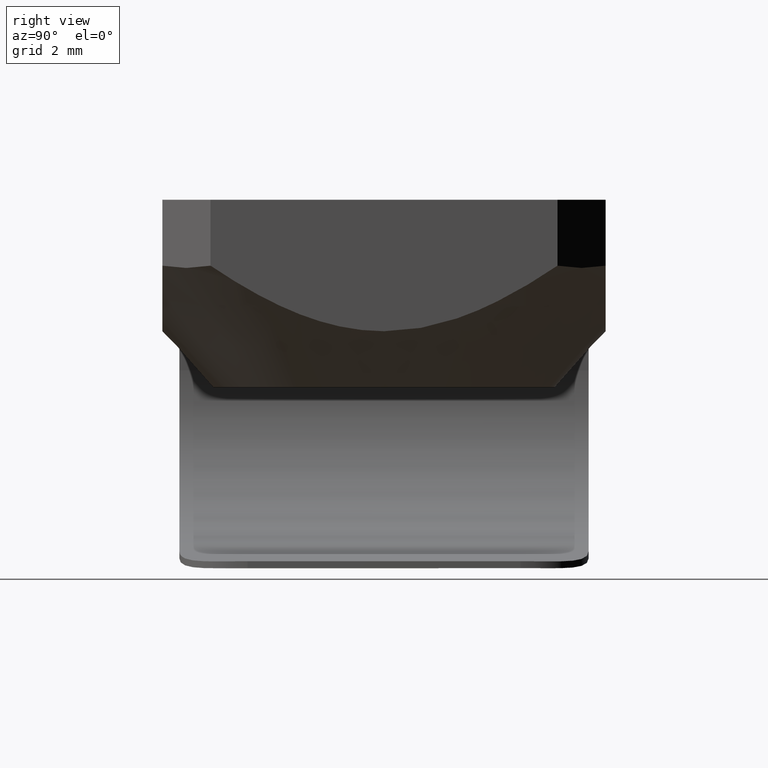
[diagram: clean part render]
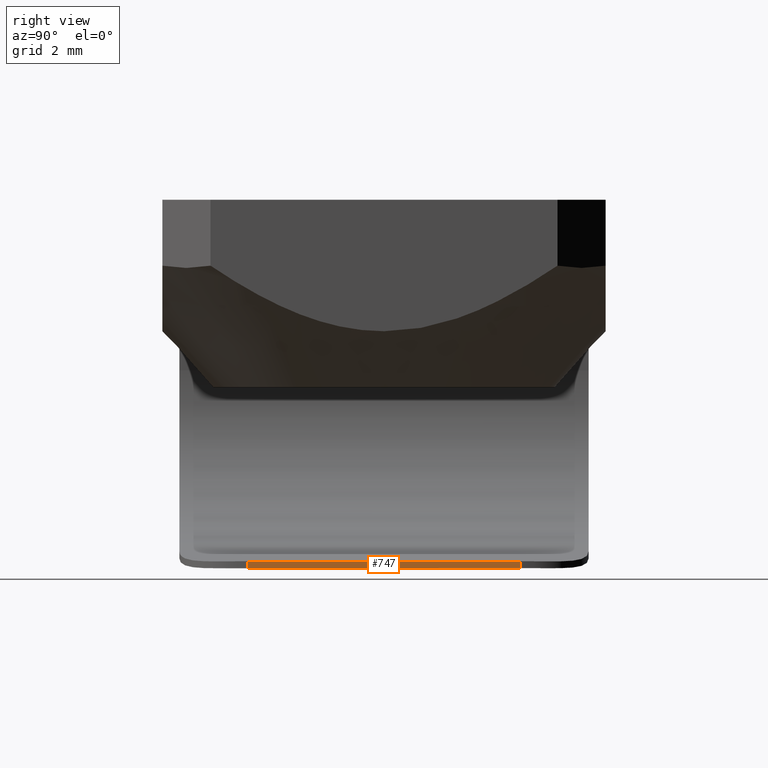
[diagram: same view with one face highlighted and labeled with its STEP entity id]
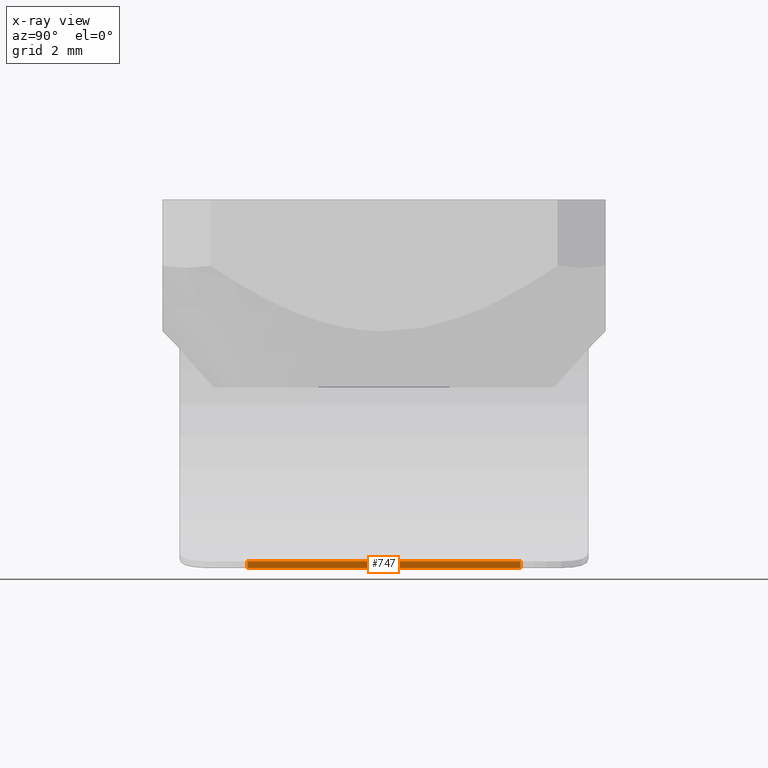
[diagram: x-ray of the same camera — body ghosted, the highlighted face saturated]
A machine part, right view. The second image highlights one B-rep face of the part: STEP entity #747.
The next image is the same camera in x-ray: the body ghosted, the highlighted face saturated — about 0% of this face is hidden behind the body in this view.
In plain terms, the highlighted planar face has unit normal (1, -0, 0).
Its self-contained STEP definition (entity closure, byte-faithful):
#4 = VERTEX_POINT ( 'NONE', #517 ) ;
#18 = VECTOR ( 'NONE', #570, 1000.000000000000000 ) ;
#21 = CARTESIAN_POINT ( 'NONE',  ( -0.8999999999990923039, -4.000000000000000888, -10.80000000000000426 ) ) ;
#53 = VERTEX_POINT ( 'NONE', #530 ) ;
#92 = VECTOR ( 'NONE', #766, 1000.000000000000000 ) ;
#96 = EDGE_CURVE ( 'NONE', #882, #53, #595, .T. ) ;
#142 = CARTESIAN_POINT ( 'NONE',  ( -0.8999999999990930810, 0.0000000000000000000, -10.80000000000000071 ) ) ;
#157 = CARTESIAN_POINT ( 'NONE',  ( -0.8999999999990927479, 4.000000000000000888, -10.60000000000000142 ) ) ;
#170 = LINE ( 'NONE', #296, #92 ) ;
#209 = LINE ( 'NONE', #295, #18 ) ;
#210 = EDGE_LOOP ( 'NONE', ( #213, #578, #695, #430 ) ) ;
#213 = ORIENTED_EDGE ( 'NONE', *, *, #361, .F. ) ;
#269 = VERTEX_POINT ( 'NONE', #21 ) ;
#284 = EDGE_CURVE ( 'NONE', #4, #269, #170, .T. ) ;
#288 = CARTESIAN_POINT ( 'NONE',  ( -0.8999999999990930810, 4.000000000000000888, -10.80000000000000071 ) ) ;
#295 = CARTESIAN_POINT ( 'NONE',  ( -0.8999999999990920818, -4.000000000000000888, -8.605752313873143322 ) ) ;
#296 = CARTESIAN_POINT ( 'NONE',  ( -0.8999999999990927479, 0.0000000000000000000, -10.80000000000000426 ) ) ;
#361 = EDGE_CURVE ( 'NONE', #269, #53, #209, .T. ) ;
#430 = ORIENTED_EDGE ( 'NONE', *, *, #96, .T. ) ;
#441 = VECTOR ( 'NONE', #611, 1000.000000000000000 ) ;
#468 = PLANE ( 'NONE',  #889 ) ;
#517 = CARTESIAN_POINT ( 'NONE',  ( -0.8999999999990929700, 4.000000000000000888, -10.80000000000000426 ) ) ;
#519 = FACE_OUTER_BOUND ( 'NONE', #210, .T. ) ;
#530 = CARTESIAN_POINT ( 'NONE',  ( -0.8999999999990929700, -4.000000000000000888, -10.60000000000000142 ) ) ;
#550 = DIRECTION ( 'NONE',  ( -0.0000000000000000000, -0.0000000000000000000, 1.000000000000000000 ) ) ;
#570 = DIRECTION ( 'NONE',  ( -0.0000000000000000000, -0.0000000000000000000, 1.000000000000000000 ) ) ;
#578 = ORIENTED_EDGE ( 'NONE', *, *, #284, .F. ) ;
#595 = LINE ( 'NONE', #877, #441 ) ;
#611 = DIRECTION ( 'NONE',  ( -0.0000000000000000000, -1.000000000000000000, -0.0000000000000000000 ) ) ;
#639 = VECTOR ( 'NONE', #550, 1000.000000000000000 ) ;
#695 = ORIENTED_EDGE ( 'NONE', *, *, #786, .T. ) ;
#729 = DIRECTION ( 'NONE',  ( 0.0000000000000000000, 0.0000000000000000000, -1.000000000000000000 ) ) ;
#734 = DIRECTION ( 'NONE',  ( 1.000000000000000000, -0.0000000000000000000, 0.0000000000000000000 ) ) ;
#747 = ADVANCED_FACE ( 'NONE', ( #519 ), #468, .T. ) ;
#766 = DIRECTION ( 'NONE',  ( -0.0000000000000000000, -1.000000000000000000, -0.0000000000000000000 ) ) ;
#786 = EDGE_CURVE ( 'NONE', #4, #882, #856, .T. ) ;
#856 = LINE ( 'NONE', #288, #639 ) ;
#877 = CARTESIAN_POINT ( 'NONE',  ( -0.8999999999990937471, 0.0000000000000000000, -10.60000000000000142 ) ) ;
#882 = VERTEX_POINT ( 'NONE', #157 ) ;
#889 = AXIS2_PLACEMENT_3D ( 'NONE', #142, #734, #729 ) ;